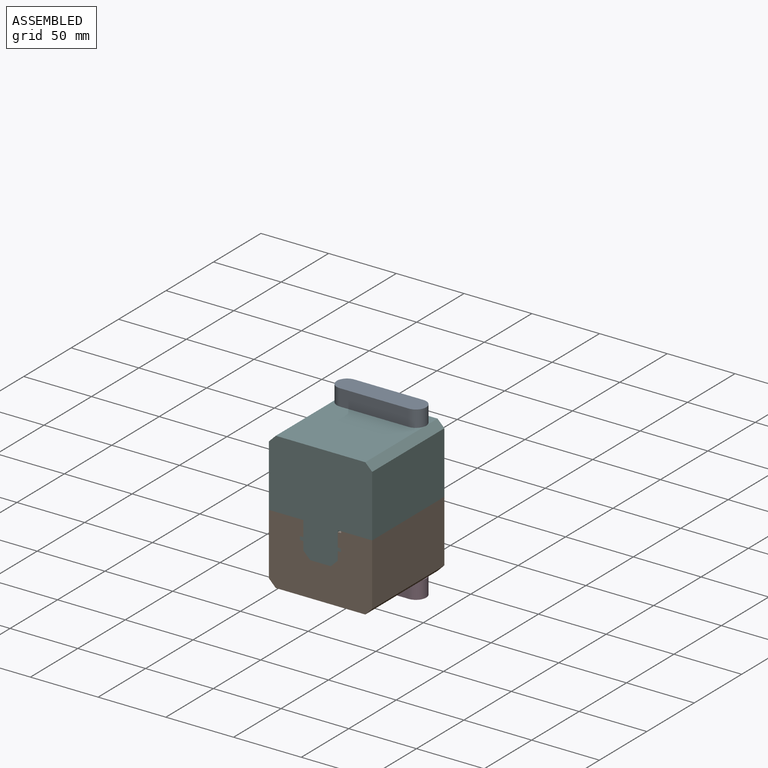
[diagram: assembled view]
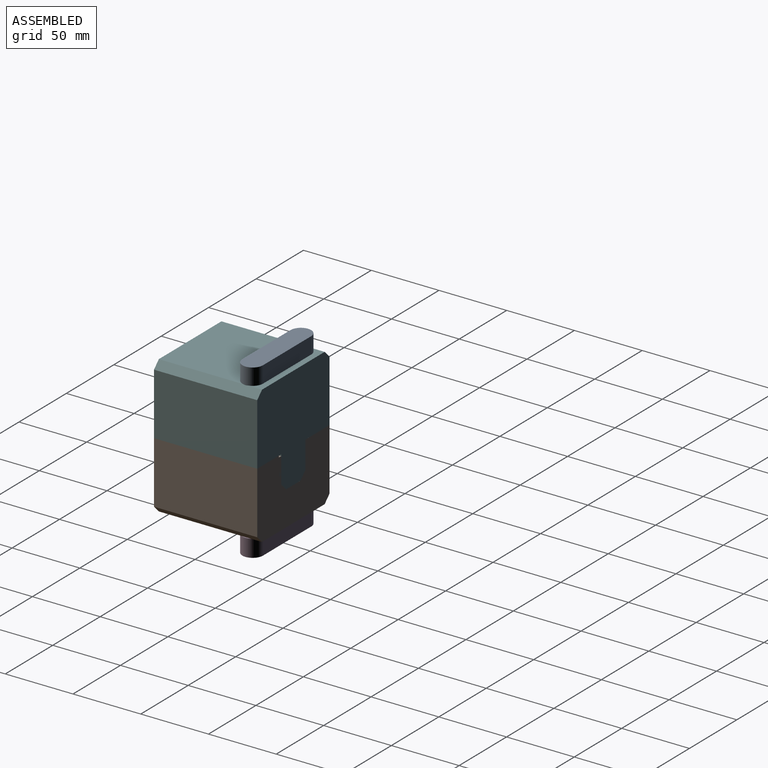
[diagram: assembled view, second angle]
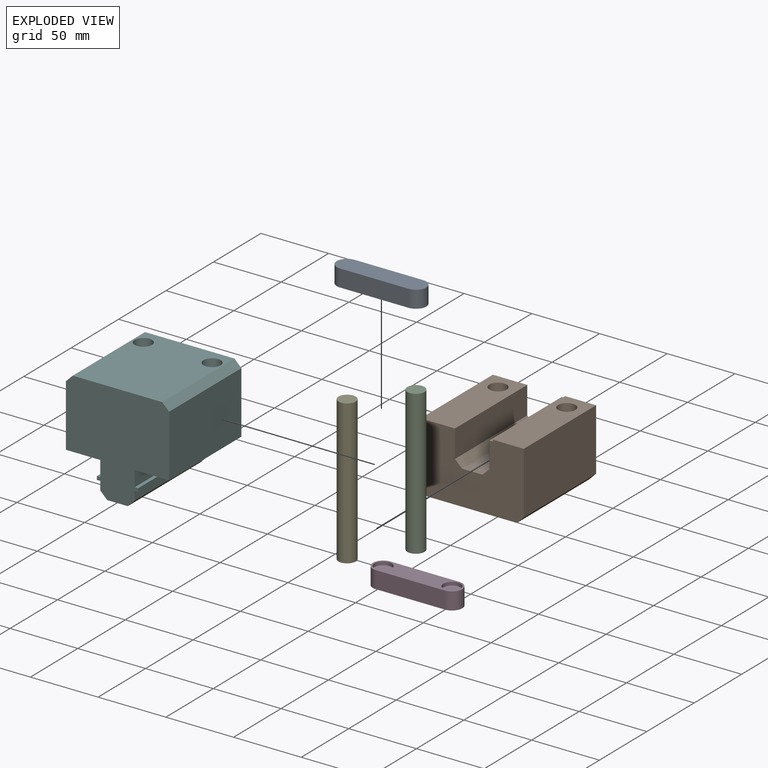
[diagram: exploded view]
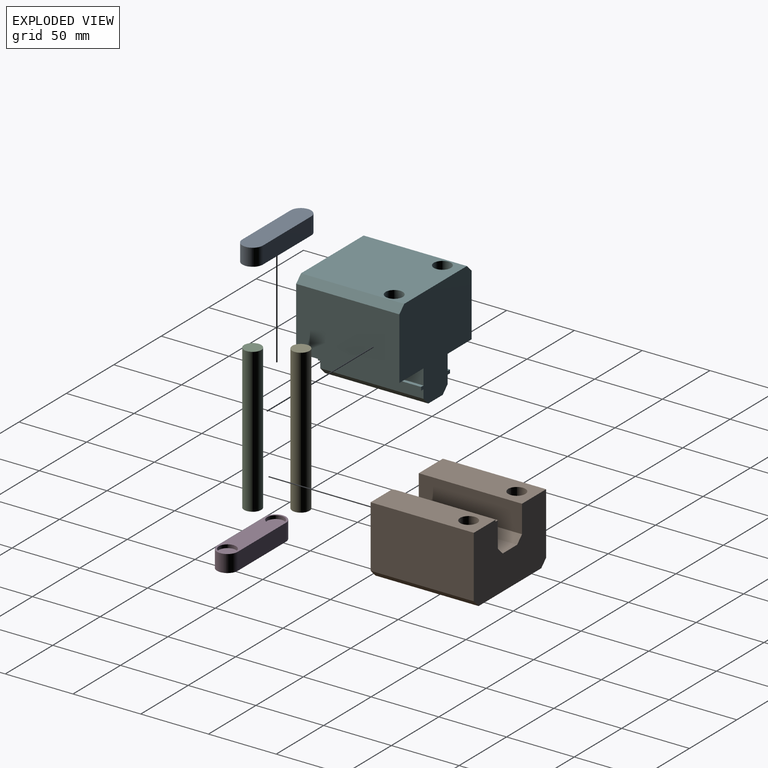
[diagram: exploded view, second angle]
ASSEMBLY  parts=6 mates=4
PART A: 10 faces, bbox 66x15.2x12.7 mm
  f0: plane 50.8x12.7mm, normal (0,1,0), area 645.2mm2, adj f1,f3,f4,f5
  f1: cylinder r=7.62mm len=15.24mm, axis (0,0,-1), area 304mm2, adj f0,f2,f4,f5
  f2: plane 50.8x12.7mm, normal (0,-1,0), area 645.2mm2, adj f1,f3,f4,f5
  f3: cylinder r=7.62mm len=15.24mm, axis (0,0,-1), area 304mm2, adj f0,f2,f4,f5
  f4: plane 66.04x15.24mm, normal (0,0,1), area 956.6mm2, adj f0,f1,f2,f3
  f5: plane 66.04x15.24mm, normal (0,0,-1), area 703.3mm2, adj f0,f1,f2,f3,f6,f8
  f6: cylinder r=6.35mm len=12.7mm, axis (0,0,-1), area 101.3mm2, adj f5,f7
  f7: plane 12.7x12.7mm, normal (0,0,-1), area 126.7mm2, adj f6
  f8: cylinder r=6.35mm len=12.7mm, axis (0,0,-1), area 101.3mm2, adj f5,f9
  f9: plane 12.7x12.7mm, normal (0,0,-1), area 126.7mm2, adj f8
PART B: 18 faces, bbox 76.2x76.2x50.8 mm
  f0: plane 76.2x25.4mm, normal (0,0,1), area 1808.8mm2, adj f1,f4,f6,f7,f11
  f1: plane 76.2x50.8mm, normal (0,1,0), area 3222.6mm2, adj f0,f2,f3,f4,f5,f7,f8,f9
  f2: plane 76.2x45.72mm, normal (1,0,0), area 3483.9mm2, adj f1,f3,f6,f15
  f3: plane 76.2x22.86mm, normal (0,0,1), area 1615.3mm2, adj f1,f2,f6,f10,f12
  f4: plane 76.2x45.72mm, normal (-1,0,0), area 3483.9mm2, adj f0,f1,f6,f14
  f5: plane 76.2x66.04mm, normal (0,0,-1), area 4778.9mm2, adj f1,f6,f10,f11,f14,f15
  f6: plane 76.2x50.8mm, normal (0,-1,0), area 3222.6mm2, adj f0,f2,f3,f4,f5,f7,f8,f9
  f7: plane 76.2x20.32mm, normal (1,0,0), area 1548.4mm2, adj f0,f1,f6,f16
  f8: plane 76.2x15.24mm, normal (0,0,1), area 1161.3mm2, adj f1,f6,f16,f17
  f9: plane 76.2x19.05mm, normal (-1,0,0), area 1451.6mm2, adj f1,f6,f13,f17
  f10: cylinder r=6.35mm len=50.8mm, axis (0,0,1), area 2026.8mm2, adj f3,f5
  f11: cylinder r=6.35mm len=50.8mm, axis (0,0,1), area 2026.8mm2, adj f0,f5
  f12: plane 76.2x1.27mm, normal (-1,0,0), area 96.8mm2, adj f1,f3,f6,f13
  f13: plane 76.2x2.54mm, normal (0,0,1), area 193.5mm2, adj f1,f6,f9,f12
  f14: plane 76.2x5.08mm, normal (-0.71,0,-0.71), area 547.4mm2, adj f1,f4,f5,f6
  f15: plane 76.2x5.08mm, normal (0.71,0,-0.71), area 547.4mm2, adj f1,f2,f5,f6
  f16: plane 76.2x5.08mm, normal (0.71,0,0.71), area 547.4mm2, adj f1,f6,f7,f8
  f17: plane 76.2x5.08mm, normal (-0.71,0,0.71), area 547.4mm2, adj f1,f6,f8,f9
PART C: 3 faces, bbox 12.7x12.7x106.7 mm
  f0: cylinder r=6.35mm len=106.68mm, axis (0,0,-1), area 4256.3mm2, adj f1,f2
  f1: plane 12.7x12.7mm, normal (0,0,1), area 126.7mm2, adj f0
  f2: plane 12.7x12.7mm, normal (0,0,-1), area 126.7mm2, adj f0
PART D: same geometry as A
PART E: same geometry as C
PART F: 24 faces, bbox 76.2x76.2x76.2 mm
  f0: plane 76.2x11.43mm, normal (1,0,0), area 871mm2, adj f4,f6,f9,f17
  f1: plane 76.2x6.35mm, normal (-1,0,0), area 483.9mm2, adj f4,f6,f15,f20
  f2: plane 76.2x11.43mm, normal (-1,0,0), area 871mm2, adj f3,f4,f6,f14
  f3: plane 76.2x25.4mm, normal (0,0,-1), area 1808.8mm2, adj f2,f4,f6,f7,f11
  f4: plane 76.2x76.2mm, normal (0,-1,0), area 4477.4mm2, adj f0,f1,f2,f3,f5,f7,f8,f9
  f5: plane 76.2x45.72mm, normal (1,0,0), area 3483.9mm2, adj f4,f6,f9,f22
  f6: plane 76.2x76.2mm, normal (0,1,0), area 4477.4mm2, adj f0,f1,f2,f3,f5,f7,f8,f9
  f7: plane 76.2x45.72mm, normal (-1,0,0), area 3483.9mm2, adj f3,f4,f6,f23
  f8: plane 76.2x66.04mm, normal (0,0,1), area 4778.9mm2, adj f4,f6,f10,f11,f22,f23
  f9: plane 76.2x25.4mm, normal (0,0,-1), area 1808.8mm2, adj f0,f4,f5,f6,f10
  f10: cylinder r=6.35mm len=50.8mm, axis (0,0,-1), area 2026.8mm2, adj f8,f9
  f11: cylinder r=6.35mm len=50.8mm, axis (0,0,-1), area 2026.8mm2, adj f3,f8
  f12: plane 76.2x6.35mm, normal (1,0,0), area 483.9mm2, adj f4,f6,f18,f21
  f13: plane 76.2x15.24mm, normal (0,0,-1), area 1161.3mm2, adj f4,f6,f20,f21
  f14: plane 76.2x2.54mm, normal (0,0,1), area 193.5mm2, adj f2,f4,f6,f16
  f15: plane 76.2x2.54mm, normal (0,0,-1), area 193.5mm2, adj f1,f4,f6,f16
  f16: plane 76.2x2.54mm, normal (-1,0,0), area 193.5mm2, adj f4,f6,f14,f15
  f17: plane 76.2x2.54mm, normal (0,0,1), area 193.5mm2, adj f0,f4,f6,f19
  f18: plane 76.2x2.54mm, normal (0,0,-1), area 193.5mm2, adj f4,f6,f12,f19
  f19: plane 76.2x2.54mm, normal (1,0,0), area 193.5mm2, adj f4,f6,f17,f18
  f20: plane 76.2x5.08mm, normal (-0.71,0,-0.71), area 547.4mm2, adj f1,f4,f6,f13
  f21: plane 76.2x5.08mm, normal (0.71,0,-0.71), area 547.4mm2, adj f4,f6,f12,f13
  f22: plane 76.2x5.08mm, normal (0.71,0,0.71), area 547.4mm2, adj f4,f5,f6,f8
  f23: plane 76.2x5.08mm, normal (-0.71,0,0.71), area 547.4mm2, adj f4,f6,f7,f8
PLACE A t=(-124.46,-73.96,37.62)mm
PLACE B t=(-99.22,-99.93,-38.13)mm
PLACE C t=(-73.66,-73.96,-66.52)mm
PLACE D rot(axis=(1,0,0),180deg) t=(-124.46,-73.96,-63.98)mm
PLACE E rot(axis=(1,0,0),0deg) t=(-124.46,-73.96,-66.52)mm
PLACE F t=(-99.22,-99.93,12.67)mm
MATE fastened E.f0 <-> D.f1  axis (0,0,-1) through (-124.46,-73.96,-66.52)mm
MATE fastened D.f6 <-> C.f0  axis (0,0,1) through (-73.66,-73.96,-66.52)mm
MATE fastened F.f11 <-> B.f11  axis (0,0,-1) through (-124.62,-74.53,-12.73)mm
MATE fastened E.f0 <-> A.f8  axis (0,0,1) through (-124.46,-73.96,40.16)mm
